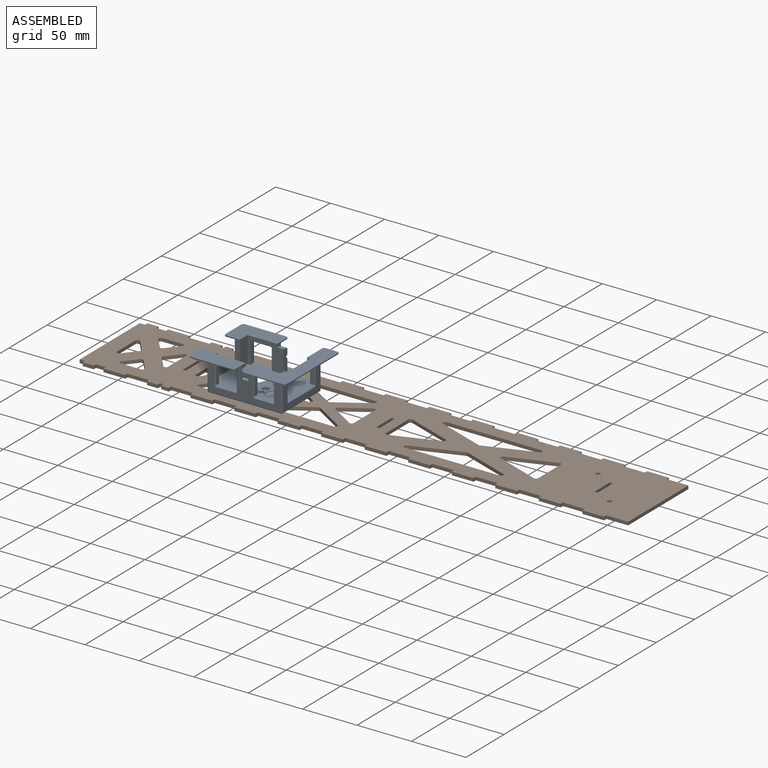
[diagram: assembled view]
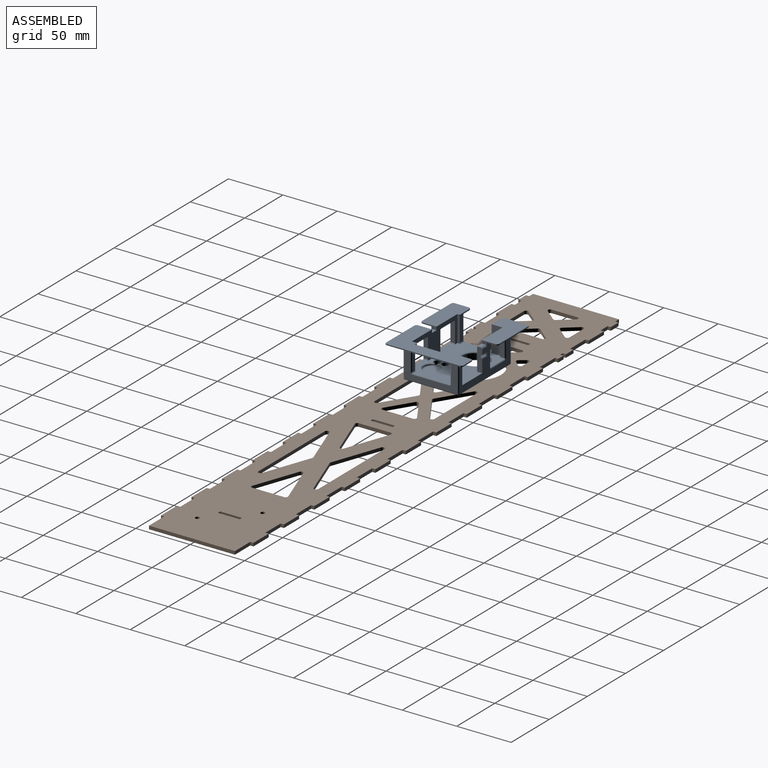
[diagram: assembled view, second angle]
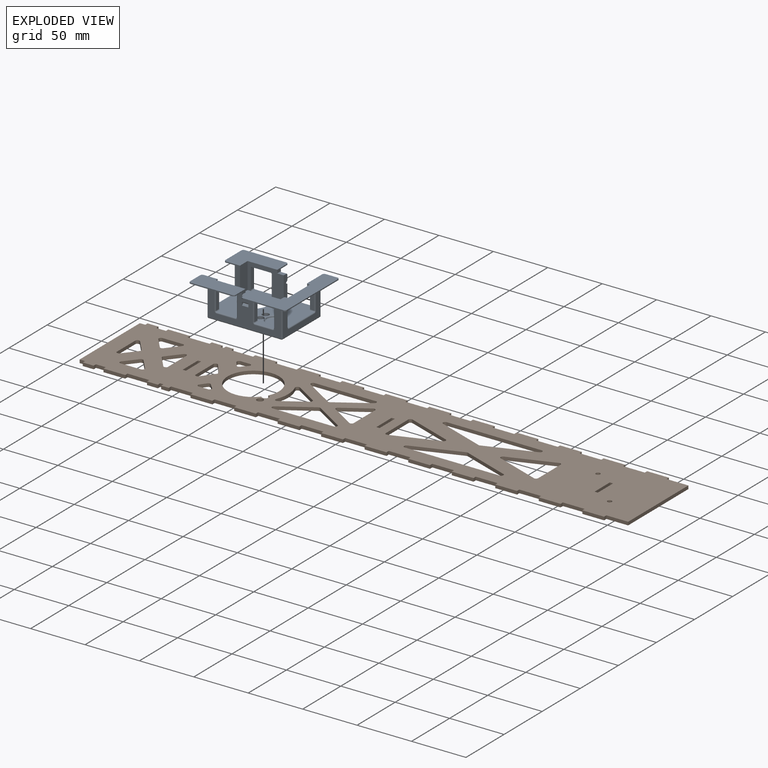
[diagram: exploded view]
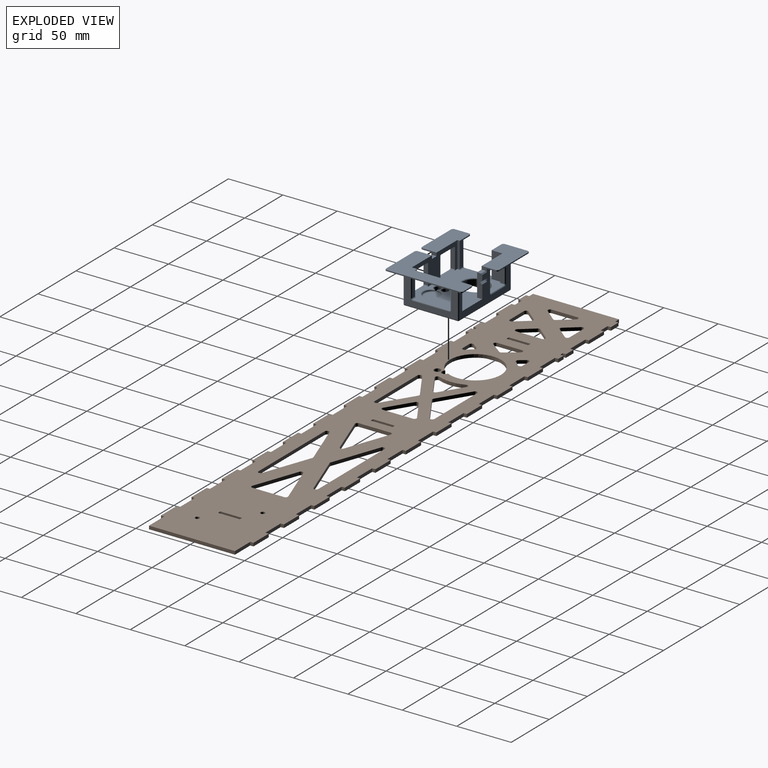
[diagram: exploded view, second angle]
ASSEMBLY  parts=2 mates=2
PART A: 170 faces, bbox 89x31x71 mm
  f0: plane 24x19.25mm, normal (1,0,0), area 208.4mm2, adj f1,f2,f8,f13,f18,f47,f103,f106
  f1: plane 33.5x3.75mm, normal (0,-1,0), area 67.2mm2, adj f0,f11,f12,f109,f112,f115,f166,f168
  f2: plane 68x50mm, normal (0,1,0), area 2178.2mm2, adj f0,f3,f6,f8,f10,f19,f29,f30
  f3: plane 21x4.75mm, normal (-1,0,0), area 96.2mm2, adj f2,f8,f30,f87,f88,f155,f157
  f4: plane 42x17mm, normal (0,1,0), area 650.1mm2, adj f6,f32,f33,f38,f41,f45,f46,f81
  f5: plane 67x29mm, normal (0,0,-1), area 1000.9mm2, adj f18,f42,f66,f71,f72,f80,f81,f83
  f6: plane 59.5x24mm, normal (0,0,1), area 661.7mm2, adj f2,f4,f10,f13,f32,f80,f81,f93
  f7: plane 2.88x2.56mm, normal (0,1,0), area 1.9mm2, adj f36,f163,f164
  f8: plane 67x29mm, normal (0,0,1), area 839.2mm2, adj f0,f2,f3,f16,f18,f68,f73,f74
  f9: plane 49x29mm, normal (-1,0,0), area 599.4mm2, adj f18,f66,f67,f68,f105,f107,f108,f110
  f10: plane 24x4mm, normal (1,0,0), area 76.4mm2, adj f2,f6,f13,f102,f104,f109,f169
  f11: plane 4x2mm, normal (0,0,1), area 4.5mm2, adj f1,f12,f13,f167,f169
  f12: plane 29x3mm, normal (1,0,0), area 87mm2, adj f1,f11,f166,f167
  f13: plane 71x41mm, normal (0,1,0), area 1343.6mm2, adj f0,f6,f10,f11,f17,f39,f40,f47
  f14: plane 42x24.75mm, normal (0,1,0), area 764.4mm2, adj f15,f29,f30,f31,f37,f43,f44,f82
  f15: plane 38x1mm, normal (0,0,1), area 38mm2, adj f14,f16,f44,f90
  f16: plane 42x24.75mm, normal (0,-1,0), area 565.1mm2, adj f8,f15,f19,f31,f37,f43,f44,f74
  f17: plane 37x1mm, normal (0,0,-1), area 37mm2, adj f13,f18,f48,f91
  f18: plane 71x41mm, normal (0,-1,0), area 1064.5mm2, adj f0,f5,f8,f9,f17,f39,f40,f47
  f19: plane 49x29mm, normal (1,0,0), area 748.7mm2, adj f2,f16,f31,f33,f42,f71,f74,f77
  f20: plane 67x49mm, normal (0,-1,0), area 2648.9mm2, adj f58,f59,f60,f61,f62,f63,f64,f65
  f21: plane 5x0.5mm, normal (-1,0,0), area 2.5mm2, adj f25,f27,f56,f64
  f22: plane 5x0.5mm, normal (0,0,1), area 2.5mm2, adj f25,f26,f55,f60
  f23: plane 5x0.5mm, normal (1,0,0), area 2.5mm2, adj f26,f28,f51,f59
  f24: plane 5x0.5mm, normal (0,0,-1), area 2.5mm2, adj f27,f28,f52,f63
  f25: cylinder r=12mm len=12mm, axis (0,1,0), area 94.2mm2, adj f21,f22,f57,f62
  f26: cylinder r=12mm len=12mm, axis (0,-1,0), area 94.2mm2, adj f22,f23,f53,f58
  f27: cylinder r=12mm len=12mm, axis (0,-1,0), area 94.2mm2, adj f21,f24,f54,f65
  f28: cylinder r=12mm len=12mm, axis (0,1,0), area 94.2mm2, adj f23,f24,f50,f61
  f29: plane 24x11mm, normal (-1,0,0), area 240.2mm2, adj f2,f14,f30,f31,f79
  f30: plane 33.25x24mm, normal (0,0,-1), area 395.9mm2, adj f2,f3,f14,f29,f82,f99,f100,f101
  f31: plane 23x12.75mm, normal (0,0,-1), area 117.3mm2, adj f14,f16,f19,f29,f43,f79
  f32: plane 24x3.25mm, normal (-1,0,0), area 54.2mm2, adj f2,f4,f6,f33,f78
  f33: plane 23x12.75mm, normal (0,0,1), area 117.3mm2, adj f4,f19,f32,f42,f45,f78
  f34: plane 13x13mm, normal (0,1,0), area 132.7mm2, adj f35
  f35: torus R=6.5mm, axis (0,1,0), area 69.6mm2, adj f34,f36,f160
  f36: torus R=8.5mm, axis (0,-1,0), area 73.1mm2, adj f2,f7,f35,f161,f162,f165
  f37: plane 20.75x1mm, normal (1,0,0), area 20.8mm2, adj f14,f16,f43,f44
  f38: plane 38x1mm, normal (0,0,-1), area 38mm2, adj f4,f42,f46,f92
  f39: plane 67x1mm, normal (-1,0,0), area 67mm2, adj f13,f18,f48,f49
  f40: plane 10.75x1mm, normal (0,0,1), area 10.8mm2, adj f13,f18,f47,f49
  f41: plane 13x1mm, normal (1,0,0), area 13mm2, adj f4,f42,f45,f46
  f42: plane 42x17mm, normal (0,-1,0), area 487.6mm2, adj f5,f19,f33,f38,f41,f45,f46,f71
  f43: cylinder r=2mm len=2mm, axis (0,1,0), area 3.1mm2, adj f14,f16,f31,f37
  f44: cylinder r=2mm len=2mm, axis (0,1,0), area 3.1mm2, adj f14,f15,f16,f37
  f45: cylinder r=2mm len=2mm, axis (0,1,0), area 3.1mm2, adj f4,f33,f41,f42
  f46: cylinder r=2mm len=2mm, axis (0,-1,0), area 3.1mm2, adj f4,f38,f41,f42
  f47: cylinder r=2mm len=2mm, axis (0,1,0), area 3.1mm2, adj f0,f13,f18,f40
  f48: cylinder r=2mm len=2mm, axis (0,-1,0), area 3.1mm2, adj f13,f17,f18,f39
  f49: cylinder r=2mm len=2mm, axis (0,1,0), area 3.1mm2, adj f13,f18,f39,f40
  f50: torus R=13mm, axis (0,-1,0), area 30.5mm2, adj f2,f28,f51,f52
  f51: cylinder r=1mm len=1mm, axis (0,0,1), area 0.8mm2, adj f2,f23,f50,f53
  f52: cylinder r=1mm len=1mm, axis (1,0,0), area 0.8mm2, adj f2,f24,f50,f54
  f53: torus R=13mm, axis (0,-1,0), area 30.5mm2, adj f2,f26,f51,f55
  f54: torus R=13mm, axis (0,-1,0), area 30.5mm2, adj f2,f27,f52,f56
  f55: cylinder r=1mm len=1mm, axis (-1,0,0), area 0.8mm2, adj f2,f22,f53,f57
  f56: cylinder r=1mm len=1mm, axis (0,0,-1), area 0.8mm2, adj f2,f21,f54,f57
  f57: torus R=13mm, axis (0,-1,0), area 30.5mm2, adj f2,f25,f55,f56
  f58: torus R=13mm, axis (0,-1,0), area 30.5mm2, adj f20,f26,f59,f60
  f59: cylinder r=1mm len=1mm, axis (0,0,1), area 0.8mm2, adj f20,f23,f58,f61
  f60: cylinder r=1mm len=1mm, axis (-1,0,0), area 0.8mm2, adj f20,f22,f58,f62
  f61: torus R=13mm, axis (0,-1,0), area 30.5mm2, adj f20,f28,f59,f63
  f62: torus R=13mm, axis (0,-1,0), area 30.5mm2, adj f20,f25,f60,f64
  f63: cylinder r=1mm len=1mm, axis (1,0,0), area 0.8mm2, adj f20,f24,f61,f65
  f64: cylinder r=1mm len=1mm, axis (0,0,-1), area 0.8mm2, adj f20,f21,f62,f65
  f65: torus R=13mm, axis (0,-1,0), area 30.5mm2, adj f20,f27,f63,f64
  f66: cylinder r=1mm len=29mm, axis (0,-1,0), area 45.6mm2, adj f5,f9,f18,f69
  f67: cylinder r=1mm len=49mm, axis (0,0,1), area 77mm2, adj f9,f20,f69,f70
  f68: cylinder r=1mm len=29mm, axis (0,1,0), area 45.6mm2, adj f8,f9,f18,f70
  f69: sphere r=1mm, area 1.6mm2, adj f66,f67,f72
  f70: sphere r=1mm, area 1.6mm2, adj f67,f68,f73
  f71: cylinder r=1mm len=29mm, axis (0,1,0), area 45.6mm2, adj f5,f19,f42,f75
  f72: cylinder r=1mm len=67mm, axis (-1,0,0), area 105.2mm2, adj f5,f20,f69,f75
  f73: cylinder r=1mm len=67mm, axis (1,0,0), area 105.2mm2, adj f8,f20,f70,f76
  f74: cylinder r=1mm len=29mm, axis (0,-1,0), area 45.6mm2, adj f8,f16,f19,f76
  f75: sphere r=1mm, area 1.6mm2, adj f71,f72,f77
  f76: sphere r=1mm, area 1.6mm2, adj f73,f74,f77
  f77: cylinder r=1mm len=49mm, axis (0,0,-1), area 77mm2, adj f19,f20,f75,f76
  f78: cylinder r=1mm len=4.75mm, axis (-1,0,0), area 7.5mm2, adj f2,f19,f32,f33
  f79: cylinder r=1mm len=4.75mm, axis (1,0,0), area 7.5mm2, adj f2,f19,f29,f31
  f80: plane 12.75x4mm, normal (1,0,0), area 22.8mm2, adj f5,f6,f13,f18,f91,f154,f156
  f81: plane 12.75x4mm, normal (-1,0,0), area 22.8mm2, adj f4,f5,f6,f42,f92,f154,f156
  f82: plane 12.75x4mm, normal (-1,0,0), area 22.8mm2, adj f8,f14,f16,f30,f90,f155,f157
  f83: plane 3x2mm, normal (1,0,0), area 3mm2, adj f5,f84,f85
  f84: plane 6x2mm, normal (0,-0.8,-0.6), area 15mm2, adj f5,f83,f85,f86
  f85: plane 6x2mm, normal (0,0.8,-0.6), area 15mm2, adj f5,f83,f84,f86
  f86: plane 3x2mm, normal (-1,0,0), area 3mm2, adj f5,f84,f85
  f87: plane 6x2mm, normal (0,-0.8,0.6), area 15mm2, adj f3,f8,f88,f89
  f88: plane 6x2mm, normal (0,0.8,0.6), area 15mm2, adj f3,f8,f87,f89
  f89: plane 3x2mm, normal (-1,0,0), area 3mm2, adj f8,f87,f88
  f90: cylinder r=2mm len=2mm, axis (0,-1,0), area 3.1mm2, adj f14,f15,f16,f82
  f91: cylinder r=2mm len=2mm, axis (0,-1,0), area 3.1mm2, adj f13,f17,f18,f80
  f92: cylinder r=2mm len=2mm, axis (0,1,0), area 3.1mm2, adj f4,f38,f42,f81
  f93: plane 16.25x3.75mm, normal (0,-1,0), area 60.9mm2, adj f6,f145,f148,f151
  f94: plane 18x3.75mm, normal (-1,0,0), area 67.5mm2, adj f6,f140,f145,f146
  f95: plane 18x3.75mm, normal (1,0,0), area 67.5mm2, adj f6,f142,f147,f148
  f96: plane 18x3.75mm, normal (-1,0,0), area 67.5mm2, adj f6,f128,f133,f134
  f97: plane 18x3.75mm, normal (1,0,0), area 67.5mm2, adj f6,f130,f135,f136
  f98: plane 17.25x3.75mm, normal (0,-1,0), area 64.7mm2, adj f6,f133,f136,f139
  f99: plane 17.25x3.75mm, normal (0,-1,0), area 64.7mm2, adj f30,f122,f123,f127
  f100: plane 18x3.75mm, normal (1,0,0), area 67.5mm2, adj f30,f117,f123,f124
  f101: plane 18x3.75mm, normal (-1,0,0), area 67.5mm2, adj f30,f116,f121,f122
  f102: plane 18x3.75mm, normal (0,0,1), area 67.5mm2, adj f10,f104,f109,f110
  f103: plane 18x3.75mm, normal (0,0,-1), area 67.5mm2, adj f0,f106,f111,f112
  f104: cylinder r=1mm len=3.75mm, axis (1,0,0), area 5.9mm2, adj f2,f10,f102,f107
  f105: cylinder r=1mm len=33.5mm, axis (0,0,-1), area 52.6mm2, adj f2,f9,f107,f108
  f106: cylinder r=1mm len=3.75mm, axis (-1,0,0), area 5.9mm2, adj f0,f2,f103,f108
  f107: torus R=2mm, axis (-1,0,0), area 3.4mm2, adj f9,f104,f105,f110
  f108: torus R=2mm, axis (-1,0,0), area 3.4mm2, adj f9,f105,f106,f111
  f109: cylinder r=1mm len=3.75mm, axis (-1,0,0), area 5.9mm2, adj f1,f10,f102,f113
  f110: cylinder r=1mm len=18mm, axis (0,1,0), area 28.3mm2, adj f9,f102,f107,f113
  f111: cylinder r=1mm len=18mm, axis (0,-1,0), area 28.3mm2, adj f9,f103,f108,f114
  f112: cylinder r=1mm len=3.75mm, axis (1,0,0), area 5.9mm2, adj f0,f1,f103,f114
  f113: torus R=2mm, axis (-1,0,0), area 3.4mm2, adj f9,f109,f110,f115
  f114: torus R=2mm, axis (-1,0,0), area 3.4mm2, adj f9,f111,f112,f115
  f115: cylinder r=1mm len=33.5mm, axis (0,0,1), area 52.6mm2, adj f1,f9,f113,f114
  f116: cylinder r=1mm len=3.75mm, axis (0,0,1), area 5.9mm2, adj f2,f30,f101,f119
  f117: cylinder r=1mm len=3.75mm, axis (0,0,-1), area 5.9mm2, adj f2,f30,f100,f120
  f118: cylinder r=1mm len=17.25mm, axis (-1,0,0), area 27.1mm2, adj f2,f8,f119,f120
  f119: torus R=2mm, axis (0,0,-1), area 3.4mm2, adj f8,f116,f118,f121
  f120: torus R=2mm, axis (0,0,-1), area 3.4mm2, adj f8,f117,f118,f124
  f121: cylinder r=1mm len=18mm, axis (0,-1,0), area 28.3mm2, adj f8,f101,f119,f125
  f122: cylinder r=1mm len=3.75mm, axis (0,0,-1), area 5.9mm2, adj f30,f99,f101,f125
  f123: cylinder r=1mm len=3.75mm, axis (0,0,1), area 5.9mm2, adj f30,f99,f100,f126
  f124: cylinder r=1mm len=18mm, axis (0,1,0), area 28.3mm2, adj f8,f100,f120,f126
  f125: torus R=2mm, axis (0,0,-1), area 3.4mm2, adj f8,f121,f122,f127
  f126: torus R=2mm, axis (0,0,-1), area 3.4mm2, adj f8,f123,f124,f127
  f127: cylinder r=1mm len=17.25mm, axis (1,0,0), area 27.1mm2, adj f8,f99,f125,f126
  f128: cylinder r=1mm len=3.75mm, axis (0,0,1), area 5.9mm2, adj f2,f6,f96,f131
  f129: cylinder r=1mm len=17.25mm, axis (1,0,0), area 27.1mm2, adj f2,f5,f131,f132
  f130: cylinder r=1mm len=3.75mm, axis (0,0,-1), area 5.9mm2, adj f2,f6,f97,f132
  f131: torus R=2mm, axis (0,0,-1), area 3.4mm2, adj f5,f128,f129,f134
  f132: torus R=2mm, axis (0,0,-1), area 3.4mm2, adj f5,f129,f130,f135
  f133: cylinder r=1mm len=3.75mm, axis (0,0,-1), area 5.9mm2, adj f6,f96,f98,f137
  f134: cylinder r=1mm len=18mm, axis (0,1,0), area 28.3mm2, adj f5,f96,f131,f137
  f135: cylinder r=1mm len=18mm, axis (0,-1,0), area 28.3mm2, adj f5,f97,f132,f138
  f136: cylinder r=1mm len=3.75mm, axis (0,0,1), area 5.9mm2, adj f6,f97,f98,f138
  f137: torus R=2mm, axis (0,0,-1), area 3.4mm2, adj f5,f133,f134,f139
  f138: torus R=2mm, axis (0,0,-1), area 3.4mm2, adj f5,f135,f136,f139
  f139: cylinder r=1mm len=17.25mm, axis (-1,0,0), area 27.1mm2, adj f5,f98,f137,f138
  f140: cylinder r=1mm len=3.75mm, axis (0,0,1), area 5.9mm2, adj f2,f6,f94,f143
  f141: cylinder r=1mm len=16.25mm, axis (1,0,0), area 25.5mm2, adj f2,f5,f143,f144
  f142: cylinder r=1mm len=3.75mm, axis (0,0,-1), area 5.9mm2, adj f2,f6,f95,f144
  f143: torus R=2mm, axis (0,0,-1), area 3.4mm2, adj f5,f140,f141,f146
  f144: torus R=2mm, axis (0,0,-1), area 3.4mm2, adj f5,f141,f142,f147
  f145: cylinder r=1mm len=3.75mm, axis (0,0,-1), area 5.9mm2, adj f6,f93,f94,f149
  f146: cylinder r=1mm len=18mm, axis (0,1,0), area 28.3mm2, adj f5,f94,f143,f149
  f147: cylinder r=1mm len=18mm, axis (0,-1,0), area 28.3mm2, adj f5,f95,f144,f150
  f148: cylinder r=1mm len=3.75mm, axis (0,0,1), area 5.9mm2, adj f6,f93,f95,f150
  f149: torus R=2mm, axis (0,0,-1), area 3.4mm2, adj f5,f145,f146,f151
  f150: torus R=2mm, axis (0,0,-1), area 3.4mm2, adj f5,f147,f148,f151
  f151: cylinder r=1mm len=16.25mm, axis (-1,0,0), area 25.5mm2, adj f5,f93,f149,f150
  f152: cylinder r=3mm len=6mm, axis (0,1,0), area 110.9mm2, adj f159,f160,f161,f162,f163
  f153: cylinder r=3mm len=6mm, axis (0,1,0), area 113.1mm2, adj f158,f164,f165
  f154: plane 6x3.75mm, normal (0,1,0), area 22.5mm2, adj f6,f80,f81,f156
  f155: plane 6x3.75mm, normal (0,1,0), area 22.5mm2, adj f3,f30,f82,f157
  f156: plane 6x1mm, normal (0,0.71,-0.71), area 8.5mm2, adj f5,f80,f81,f154
  f157: plane 6x1mm, normal (0,0.71,0.71), area 8.5mm2, adj f3,f8,f82,f155
  f158: torus R=3.5mm, axis (0,-1,0), area 15.7mm2, adj f20,f153
  f159: torus R=3.5mm, axis (0,-1,0), area 15.7mm2, adj f20,f152
  f160: bspline ~2.01x1.36mm, area 2.2mm2, adj f35,f152,f161,f162
  f161: bspline ~3.01x1.96mm, area 1.8mm2, adj f36,f152,f160,f163
  f162: bspline ~3.31x1.74mm, area 1.8mm2, adj f36,f152,f160,f163
  f163: torus R=3.5mm, axis (0,-1,0), area 12.9mm2, adj f2,f7,f152,f161,f162
  f164: torus R=3.5mm, axis (0,-1,0), area 14.6mm2, adj f2,f7,f153,f165
  f165: bspline ~1.78x1.22mm, area 1.2mm2, adj f36,f153,f164
  f166: plane 4x2mm, normal (0,0,-1), area 4.5mm2, adj f1,f12,f13,f167,f168
  f167: plane 29x1mm, normal (0.71,0.71,0), area 41mm2, adj f11,f12,f13,f166
  f168: cylinder r=1mm len=4mm, axis (0,-1,0), area 6.3mm2, adj f0,f1,f13,f166
  f169: cylinder r=1mm len=4mm, axis (0,-1,0), area 6.3mm2, adj f1,f10,f11,f13
PART B: 225 faces, bbox 504x85x3 mm
  f0: plane 10x3mm, normal (0,1,0), area 30mm2, adj f2,f31,f124,f202
  f1: plane 10x3mm, normal (0,-1,0), area 30mm2, adj f2,f31,f192,f210
  f2: plane 504x85mm, normal (0,0,1), area 31881.9mm2, adj f0,f1,f3,f4,f5,f6,f7,f8
  f3: plane 79x3mm, normal (-1,0,0), area 237mm2, adj f2,f31,f118,f196
  f4: plane 79x3mm, normal (1,0,0), area 237mm2, adj f2,f31,f156,f158
  f5: plane 10x3mm, normal (0,1,0), area 30mm2, adj f2,f31,f119,f121
  f6: plane 20x3mm, normal (0,1,0), area 60mm2, adj f2,f31,f122,f125
  f7: plane 7x3mm, normal (0,1,0), area 21mm2, adj f2,f31,f128,f203
  f8: plane 20x3mm, normal (0,1,0), area 60mm2, adj f2,f31,f127,f131
  f9: plane 20x3mm, normal (0,1,0), area 60mm2, adj f2,f31,f130,f134
  f10: plane 20x3mm, normal (0,1,0), area 60mm2, adj f2,f31,f133,f137
  f11: plane 20x3mm, normal (0,1,0), area 60mm2, adj f2,f31,f136,f139
  f12: plane 20x3mm, normal (0,1,0), area 60mm2, adj f2,f31,f154,f157
  f13: plane 20x3mm, normal (0,1,0), area 60mm2, adj f2,f31,f151,f155
  f14: plane 20x3mm, normal (0,1,0), area 60mm2, adj f2,f31,f148,f152
  f15: plane 20x3mm, normal (0,1,0), area 60mm2, adj f2,f31,f145,f149
  f16: plane 20x3mm, normal (0,1,0), area 60mm2, adj f2,f31,f143,f146
  f17: plane 20x3mm, normal (0,1,0), area 60mm2, adj f2,f31,f140,f142
  f18: plane 10x3mm, normal (0,-1,0), area 30mm2, adj f2,f31,f194,f197
  f19: plane 20x3mm, normal (0,-1,0), area 60mm2, adj f2,f31,f176,f180
  f20: plane 20x3mm, normal (0,-1,0), area 60mm2, adj f2,f31,f179,f183
  f21: plane 20x3mm, normal (0,-1,0), area 60mm2, adj f2,f31,f182,f186
  f22: plane 20x3mm, normal (0,-1,0), area 60mm2, adj f2,f31,f185,f189
  f23: plane 7x3mm, normal (0,-1,0), area 21mm2, adj f2,f31,f188,f211
  f24: plane 20x3mm, normal (0,-1,0), area 60mm2, adj f2,f31,f191,f195
  f25: plane 20x3mm, normal (0,-1,0), area 60mm2, adj f2,f31,f159,f161
  f26: plane 20x3mm, normal (0,-1,0), area 60mm2, adj f2,f31,f162,f164
  f27: plane 20x3mm, normal (0,-1,0), area 60mm2, adj f2,f31,f165,f167
  f28: plane 20x3mm, normal (0,-1,0), area 60mm2, adj f2,f31,f168,f170
  f29: plane 20x3mm, normal (0,-1,0), area 60mm2, adj f2,f31,f171,f174
  f30: plane 20x3mm, normal (0,-1,0), area 60mm2, adj f2,f31,f173,f177
  f31: plane 504x85mm, normal (0,0,-1), area 31881.9mm2, adj f0,f1,f3,f4,f5,f6,f7,f8
  f32: cylinder r=32mm len=24.49mm, axis (0,0,1), area 75.4mm2, adj f2,f31,f112,f116
  f33: plane 20.81x13.01mm, normal (-0.53,-0.85,0), area 73.6mm2, adj f2,f31,f112,f113
  f34: plane 40.71x14.65mm, normal (0.34,-0.94,0), area 129.8mm2, adj f2,f31,f94,f101
  f35: plane 29.31x3mm, normal (-1,0,0), area 87.9mm2, adj f2,f31,f94,f95
  f36: plane 43.54x15.67mm, normal (0.34,0.94,0), area 138.8mm2, adj f2,f31,f92,f100
  f37: plane 87.08x3mm, normal (0,-1,0), area 261.2mm2, adj f2,f31,f92,f93
  f38: plane 29.31x3mm, normal (1,0,0), area 87.9mm2, adj f2,f31,f90,f91
  f39: plane 40.71x14.65mm, normal (-0.34,-0.94,0), area 129.8mm2, adj f2,f31,f91,f99
  f40: plane 87.08x3mm, normal (0,1,0), area 261.2mm2, adj f2,f31,f96,f97
  f41: plane 43.54x15.67mm, normal (0.34,-0.94,0), area 138.8mm2, adj f2,f31,f97,f98
  f42: plane 11.92x9.8mm, normal (0.77,-0.64,0), area 46.3mm2, adj f2,f31,f86,f105
  f43: plane 23.84x3mm, normal (-1,0,0), area 71.5mm2, adj f2,f31,f86,f87
  f44: plane 11.27x9.27mm, normal (0.77,0.64,0), area 43.8mm2, adj f2,f31,f84,f103
  f45: plane 18.53x3mm, normal (0,-1,0), area 55.6mm2, adj f2,f31,f84,f85
  f46: plane 23.84x3mm, normal (1,0,0), area 71.5mm2, adj f2,f31,f82,f83
  f47: plane 11.92x9.8mm, normal (-0.77,-0.64,0), area 46.3mm2, adj f2,f31,f83,f102
  f48: plane 18.53x3mm, normal (0,1,0), area 55.6mm2, adj f2,f31,f88,f89
  f49: plane 11.27x9.27mm, normal (0.77,-0.64,0), area 43.8mm2, adj f2,f31,f89,f104
  f50: cylinder r=23.5mm len=47mm, axis (0,0,1), area 426.4mm2, adj f2,f31,f73
  f51: plane 28.03x17.52mm, normal (-0.53,-0.85,0), area 99.2mm2, adj f2,f31,f110,f115
  f52: plane 56.05x3mm, normal (0,1,0), area 168.2mm2, adj f2,f31,f110,f111
  f53: plane 22.23x13.89mm, normal (0.53,-0.85,0), area 78.6mm2, adj f2,f31,f108,f117
  f54: plane 27.78x3mm, normal (-1,0,0), area 83.3mm2, adj f2,f31,f108,f109
  f55: plane 56.05x3mm, normal (0,-1,0), area 168.2mm2, adj f2,f31,f106,f107
  f56: plane 28.03x17.52mm, normal (-0.53,0.85,0), area 99.2mm2, adj f2,f31,f107,f114
  f57: plane 5.12x3.81mm, normal (0.8,-0.6,0), area 19.1mm2, adj f2,f31,f221,f223
  f58: cylinder r=32mm len=4.82mm, axis (0,0,1), area 19.7mm2, adj f2,f31,f221,f222
  f59: plane 5.12x3.81mm, normal (0.8,0.6,0), area 19.1mm2, adj f2,f31,f217,f219
  f60: plane 8.53x3mm, normal (0,-1,0), area 25.6mm2, adj f2,f31,f217,f218
  f61: plane 22.91x3mm, normal (1,0,0), area 68.7mm2, adj f2,f31,f216,f224
  f62: plane 11.45x8.51mm, normal (-0.8,-0.6,0), area 42.8mm2, adj f2,f31,f216,f220
  f63: cylinder r=2mm len=4mm, axis (0,0,1), area 37.7mm2, adj f2,f31
  f64: cylinder r=2mm len=4mm, axis (0,0,1), area 37.7mm2, adj f2,f31
  f65: plane 40.71x14.65mm, normal (0.34,0.94,0), area 129.8mm2, adj f2,f31,f95,f101
  f66: plane 43.54x15.67mm, normal (-0.34,0.94,0), area 138.8mm2, adj f2,f31,f93,f100
  f67: plane 40.71x14.65mm, normal (-0.34,0.94,0), area 129.8mm2, adj f2,f31,f90,f99
  f68: plane 43.54x15.67mm, normal (-0.34,-0.94,0), area 138.8mm2, adj f2,f31,f96,f98
  f69: plane 11.92x9.8mm, normal (0.77,0.64,0), area 46.3mm2, adj f2,f31,f87,f105
  f70: plane 11.27x9.27mm, normal (-0.77,0.64,0), area 43.8mm2, adj f2,f31,f85,f103
  f71: plane 11.92x9.8mm, normal (-0.77,0.64,0), area 46.3mm2, adj f2,f31,f82,f102
  f72: plane 11.27x9.27mm, normal (-0.77,-0.64,0), area 43.8mm2, adj f2,f31,f88,f104
  f73: cylinder r=3mm len=5.96mm, axis (0,0,1), area 35.7mm2, adj f2,f31,f50
  f74: cylinder r=3mm len=6mm, axis (0,0,1), area 56.5mm2, adj f2,f31
  f75: plane 28.03x17.52mm, normal (0.53,-0.85,0), area 99.2mm2, adj f2,f31,f111,f115
  f76: plane 22.23x13.89mm, normal (0.53,0.85,0), area 78.6mm2, adj f2,f31,f109,f117
  f77: plane 28.03x17.52mm, normal (0.53,0.85,0), area 99.2mm2, adj f2,f31,f106,f114
  f78: plane 8.53x3mm, normal (0,1,0), area 25.6mm2, adj f2,f31,f222,f223
  f79: cylinder r=32mm len=4.82mm, axis (0,0,1), area 19.7mm2, adj f2,f31,f218,f219
  f80: plane 11.45x8.51mm, normal (-0.8,0.6,0), area 42.8mm2, adj f2,f31,f220,f224
  f81: plane 20.81x13.01mm, normal (-0.53,0.85,0), area 73.6mm2, adj f2,f31,f113,f116
  f82: cylinder r=2mm len=3.55mm, axis (0,0,-1), area 14.7mm2, adj f2,f31,f46,f71
  f83: cylinder r=2mm len=3.55mm, axis (0,0,1), area 14.7mm2, adj f2,f31,f46,f47
  f84: cylinder r=2mm len=3.27mm, axis (0,0,1), area 13.6mm2, adj f2,f31,f44,f45
  f85: cylinder r=2mm len=3.27mm, axis (0,0,1), area 13.6mm2, adj f2,f31,f45,f70
  f86: cylinder r=2mm len=3.55mm, axis (0,0,-1), area 14.7mm2, adj f2,f31,f42,f43
  f87: cylinder r=2mm len=3.55mm, axis (0,0,1), area 14.7mm2, adj f2,f31,f43,f69
  f88: cylinder r=2mm len=3.27mm, axis (0,0,1), area 13.6mm2, adj f2,f31,f48,f72
  f89: cylinder r=2mm len=3.27mm, axis (0,0,1), area 13.6mm2, adj f2,f31,f48,f49
  f90: cylinder r=2mm len=3mm, axis (0,0,-1), area 11.5mm2, adj f2,f31,f38,f67
  f91: cylinder r=2mm len=3mm, axis (0,0,1), area 11.5mm2, adj f2,f31,f38,f39
  f92: cylinder r=2mm len=3.88mm, axis (0,0,1), area 16.8mm2, adj f2,f31,f36,f37
  f93: cylinder r=2mm len=3.88mm, axis (0,0,1), area 16.8mm2, adj f2,f31,f37,f66
  f94: cylinder r=2mm len=3mm, axis (0,0,-1), area 11.5mm2, adj f2,f31,f34,f35
  f95: cylinder r=2mm len=3mm, axis (0,0,1), area 11.5mm2, adj f2,f31,f35,f65
  f96: cylinder r=2mm len=3.88mm, axis (0,0,1), area 16.8mm2, adj f2,f31,f40,f68
  f97: cylinder r=2mm len=3.88mm, axis (0,0,1), area 16.8mm2, adj f2,f31,f40,f41
  f98: cylinder r=2mm len=3mm, axis (0,0,-1), area 4.1mm2, adj f2,f31,f41,f68
  f99: cylinder r=2mm len=3.76mm, axis (0,0,1), area 14.7mm2, adj f2,f31,f39,f67
  f100: cylinder r=2mm len=3mm, axis (0,0,-1), area 4.1mm2, adj f2,f31,f36,f66
  f101: cylinder r=2mm len=3.76mm, axis (0,0,1), area 14.7mm2, adj f2,f31,f34,f65
  f102: cylinder r=2mm len=3mm, axis (0,0,1), area 8.3mm2, adj f2,f31,f47,f71
  f103: cylinder r=2mm len=3.09mm, axis (0,0,-1), area 10.6mm2, adj f2,f31,f44,f70
  f104: cylinder r=2mm len=3.09mm, axis (0,0,-1), area 10.6mm2, adj f2,f31,f49,f72
  f105: cylinder r=2mm len=3mm, axis (0,0,1), area 8.3mm2, adj f2,f31,f42,f69
  f106: cylinder r=2mm len=3.7mm, axis (0,0,-1), area 15.5mm2, adj f2,f31,f55,f77
  f107: cylinder r=2mm len=3.7mm, axis (0,0,-1), area 15.5mm2, adj f2,f31,f55,f56
  f108: cylinder r=2mm len=3.06mm, axis (0,0,-1), area 12.8mm2, adj f2,f31,f53,f54
  f109: cylinder r=2mm len=3.06mm, axis (0,0,1), area 12.8mm2, adj f2,f31,f54,f76
  f110: cylinder r=2mm len=3.7mm, axis (0,0,-1), area 15.5mm2, adj f2,f31,f51,f52
  f111: cylinder r=2mm len=3.7mm, axis (0,0,-1), area 15.5mm2, adj f2,f31,f52,f75
  f112: cylinder r=2mm len=3.06mm, axis (0,0,1), area 15.1mm2, adj f2,f31,f32,f33
  f113: cylinder r=2mm len=3.39mm, axis (0,0,1), area 12.1mm2, adj f2,f31,f33,f81
  f114: cylinder r=2mm len=3mm, axis (0,0,-1), area 6.7mm2, adj f2,f31,f56,f77
  f115: cylinder r=2mm len=3mm, axis (0,0,-1), area 6.7mm2, adj f2,f31,f51,f75
  f116: cylinder r=2mm len=3.06mm, axis (0,0,1), area 15.1mm2, adj f2,f31,f32,f81
  f117: cylinder r=2mm len=3.39mm, axis (0,0,1), area 12.1mm2, adj f2,f31,f53,f76
  f118: plane 5x3mm, normal (0,1,0), area 15mm2, adj f2,f3,f31,f119
  f119: plane 3x3mm, normal (-1,0,0), area 9mm2, adj f2,f5,f31,f118
  f120: plane 9x3mm, normal (0,1,0), area 27mm2, adj f2,f31,f121,f122
  f121: plane 3x3mm, normal (1,0,0), area 9mm2, adj f2,f5,f31,f120
  f122: plane 3x3mm, normal (-1,0,0), area 9mm2, adj f2,f6,f31,f120
  f123: plane 20x3mm, normal (0,1,0), area 60mm2, adj f2,f31,f124,f125
  f124: plane 3x3mm, normal (-1,0,0), area 9mm2, adj f0,f2,f31,f123
  f125: plane 3x3mm, normal (1,0,0), area 9mm2, adj f2,f6,f31,f123
  f126: plane 20x3mm, normal (0,1,0), area 60mm2, adj f2,f31,f127,f128
  f127: plane 3x3mm, normal (-1,0,0), area 9mm2, adj f2,f8,f31,f126
  f128: plane 3x3mm, normal (1,0,0), area 9mm2, adj f2,f7,f31,f126
  f129: plane 20x3mm, normal (0,1,0), area 60mm2, adj f2,f31,f130,f131
  f130: plane 3x3mm, normal (-1,0,0), area 9mm2, adj f2,f9,f31,f129
  f131: plane 3x3mm, normal (1,0,0), area 9mm2, adj f2,f8,f31,f129
  f132: plane 20x3mm, normal (0,1,0), area 60mm2, adj f2,f31,f133,f134
  f133: plane 3x3mm, normal (-1,0,0), area 9mm2, adj f2,f10,f31,f132
  f134: plane 3x3mm, normal (1,0,0), area 9mm2, adj f2,f9,f31,f132
  f135: plane 20x3mm, normal (0,1,0), area 60mm2, adj f2,f31,f136,f137
  f136: plane 3x3mm, normal (-1,0,0), area 9mm2, adj f2,f11,f31,f135
  f137: plane 3x3mm, normal (1,0,0), area 9mm2, adj f2,f10,f31,f135
  f138: plane 20x3mm, normal (0,1,0), area 60mm2, adj f2,f31,f139,f140
  f139: plane 3x3mm, normal (1,0,0), area 9mm2, adj f2,f11,f31,f138
  f140: plane 3x3mm, normal (-1,0,0), area 9mm2, adj f2,f17,f31,f138
  f141: plane 20x3mm, normal (0,1,0), area 60mm2, adj f2,f31,f142,f143
  f142: plane 3x3mm, normal (1,0,0), area 9mm2, adj f2,f17,f31,f141
  f143: plane 3x3mm, normal (-1,0,0), area 9mm2, adj f2,f16,f31,f141
  f144: plane 20x3mm, normal (0,1,0), area 60mm2, adj f2,f31,f145,f146
  f145: plane 3x3mm, normal (-1,0,0), area 9mm2, adj f2,f15,f31,f144
  f146: plane 3x3mm, normal (1,0,0), area 9mm2, adj f2,f16,f31,f144
  f147: plane 20x3mm, normal (0,1,0), area 60mm2, adj f2,f31,f148,f149
  f148: plane 3x3mm, normal (-1,0,0), area 9mm2, adj f2,f14,f31,f147
  f149: plane 3x3mm, normal (1,0,0), area 9mm2, adj f2,f15,f31,f147
  f150: plane 20x3mm, normal (0,1,0), area 60mm2, adj f2,f31,f151,f152
  f151: plane 3x3mm, normal (-1,0,0), area 9mm2, adj f2,f13,f31,f150
  f152: plane 3x3mm, normal (1,0,0), area 9mm2, adj f2,f14,f31,f150
  f153: plane 20x3mm, normal (0,1,0), area 60mm2, adj f2,f31,f154,f155
  f154: plane 3x3mm, normal (-1,0,0), area 9mm2, adj f2,f12,f31,f153
  f155: plane 3x3mm, normal (1,0,0), area 9mm2, adj f2,f13,f31,f153
  f156: plane 20x3mm, normal (0,1,0), area 60mm2, adj f2,f4,f31,f157
  f157: plane 3x3mm, normal (1,0,0), area 9mm2, adj f2,f12,f31,f156
  f158: plane 20x3mm, normal (0,-1,0), area 60mm2, adj f2,f4,f31,f159
  f159: plane 3x3mm, normal (1,0,0), area 9mm2, adj f2,f25,f31,f158
  f160: plane 20x3mm, normal (0,-1,0), area 60mm2, adj f2,f31,f161,f162
  f161: plane 3x3mm, normal (-1,0,0), area 9mm2, adj f2,f25,f31,f160
  f162: plane 3x3mm, normal (1,0,0), area 9mm2, adj f2,f26,f31,f160
  f163: plane 20x3mm, normal (0,-1,0), area 60mm2, adj f2,f31,f164,f165
  f164: plane 3x3mm, normal (-1,0,0), area 9mm2, adj f2,f26,f31,f163
  f165: plane 3x3mm, normal (1,0,0), area 9mm2, adj f2,f27,f31,f163
  f166: plane 20x3mm, normal (0,-1,0), area 60mm2, adj f2,f31,f167,f168
  f167: plane 3x3mm, normal (-1,0,0), area 9mm2, adj f2,f27,f31,f166
  f168: plane 3x3mm, normal (1,0,0), area 9mm2, adj f2,f28,f31,f166
  f169: plane 20x3mm, normal (0,-1,0), area 60mm2, adj f2,f31,f170,f171
  f170: plane 3x3mm, normal (-1,0,0), area 9mm2, adj f2,f28,f31,f169
  f171: plane 3x3mm, normal (1,0,0), area 9mm2, adj f2,f29,f31,f169
  f172: plane 20x3mm, normal (0,-1,0), area 60mm2, adj f2,f31,f173,f174
  f173: plane 3x3mm, normal (1,0,0), area 9mm2, adj f2,f30,f31,f172
  f174: plane 3x3mm, normal (-1,0,0), area 9mm2, adj f2,f29,f31,f172
  f175: plane 20x3mm, normal (0,-1,0), area 60mm2, adj f2,f31,f176,f177
  f176: plane 3x3mm, normal (1,0,0), area 9mm2, adj f2,f19,f31,f175
  f177: plane 3x3mm, normal (-1,0,0), area 9mm2, adj f2,f30,f31,f175
  f178: plane 20x3mm, normal (0,-1,0), area 60mm2, adj f2,f31,f179,f180
  f179: plane 3x3mm, normal (1,0,0), area 9mm2, adj f2,f20,f31,f178
  f180: plane 3x3mm, normal (-1,0,0), area 9mm2, adj f2,f19,f31,f178
  f181: plane 20x3mm, normal (0,-1,0), area 60mm2, adj f2,f31,f182,f183
  f182: plane 3x3mm, normal (1,0,0), area 9mm2, adj f2,f21,f31,f181
  f183: plane 3x3mm, normal (-1,0,0), area 9mm2, adj f2,f20,f31,f181
  f184: plane 20x3mm, normal (0,-1,0), area 60mm2, adj f2,f31,f185,f186
  f185: plane 3x3mm, normal (1,0,0), area 9mm2, adj f2,f22,f31,f184
  f186: plane 3x3mm, normal (-1,0,0), area 9mm2, adj f2,f21,f31,f184
  f187: plane 20x3mm, normal (0,-1,0), area 60mm2, adj f2,f31,f188,f189
  f188: plane 3x3mm, normal (1,0,0), area 9mm2, adj f2,f23,f31,f187
  f189: plane 3x3mm, normal (-1,0,0), area 9mm2, adj f2,f22,f31,f187
  f190: plane 20x3mm, normal (0,-1,0), area 60mm2, adj f2,f31,f191,f192
  f191: plane 3x3mm, normal (1,0,0), area 9mm2, adj f2,f24,f31,f190
  f192: plane 3x3mm, normal (-1,0,0), area 9mm2, adj f1,f2,f31,f190
  f193: plane 9x3mm, normal (0,-1,0), area 27mm2, adj f2,f31,f194,f195
  f194: plane 3x3mm, normal (1,0,0), area 9mm2, adj f2,f18,f31,f193
  f195: plane 3x3mm, normal (-1,0,0), area 9mm2, adj f2,f24,f31,f193
  f196: plane 5x3mm, normal (0,-1,0), area 15mm2, adj f2,f3,f31,f197
  f197: plane 3x3mm, normal (-1,0,0), area 9mm2, adj f2,f18,f31,f196
  f198: plane 20x3mm, normal (-1,0,0), area 60mm2, adj f2,f31,f200,f201
  f199: plane 20x3mm, normal (1,0,0), area 60mm2, adj f2,f31,f200,f201
  f200: plane 3x3mm, normal (0,-1,0), area 9mm2, adj f2,f31,f198,f199
  f201: plane 3x3mm, normal (0,1,0), area 9mm2, adj f2,f31,f198,f199
  f202: plane 3x3mm, normal (1,0,0), area 9mm2, adj f0,f2,f31,f204
  f203: plane 3x3mm, normal (-1,0,0), area 9mm2, adj f2,f7,f31,f204
  f204: plane 3x3mm, normal (0,1,0), area 9mm2, adj f2,f31,f202,f203
  f205: plane 20x3mm, normal (1,0,0), area 60mm2, adj f2,f31,f207,f208
  f206: plane 20x3mm, normal (-1,0,0), area 60mm2, adj f2,f31,f207,f208
  f207: plane 3x3mm, normal (0,1,0), area 9mm2, adj f2,f31,f205,f206
  f208: plane 3x3mm, normal (0,-1,0), area 9mm2, adj f2,f31,f205,f206
  f209: plane 3x3mm, normal (0,-1,0), area 9mm2, adj f2,f31,f210,f211
  f210: plane 3x3mm, normal (1,0,0), area 9mm2, adj f1,f2,f31,f209
  f211: plane 3x3mm, normal (-1,0,0), area 9mm2, adj f2,f23,f31,f209
  f212: plane 20x3mm, normal (-1,0,0), area 60mm2, adj f2,f31,f214,f215
  f213: plane 20x3mm, normal (1,0,0), area 60mm2, adj f2,f31,f214,f215
  f214: plane 3x3mm, normal (0,-1,0), area 9mm2, adj f2,f31,f212,f213
  f215: plane 3x3mm, normal (0,1,0), area 9mm2, adj f2,f31,f212,f213
  f216: cylinder r=2mm len=3.61mm, axis (0,0,-1), area 15mm2, adj f2,f31,f61,f62
  f217: cylinder r=2mm len=3.19mm, axis (0,0,1), area 13.3mm2, adj f2,f31,f59,f60
  f218: cylinder r=2mm len=3.5mm, axis (0,0,1), area 14.5mm2, adj f2,f31,f60,f79
  f219: cylinder r=2mm len=3.21mm, axis (0,0,1), area 11.2mm2, adj f2,f31,f59,f79
  f220: cylinder r=2mm len=3mm, axis (0,0,1), area 7.7mm2, adj f2,f31,f62,f80
  f221: cylinder r=2mm len=3.21mm, axis (0,0,1), area 11.2mm2, adj f2,f31,f57,f58
  f222: cylinder r=2mm len=3.5mm, axis (0,0,1), area 14.5mm2, adj f2,f31,f58,f78
  f223: cylinder r=2mm len=3.19mm, axis (0,0,1), area 13.3mm2, adj f2,f31,f57,f78
  f224: cylinder r=2mm len=3.61mm, axis (0,0,1), area 15mm2, adj f2,f31,f61,f80
PLACE A rot(axis=(0,0.71,0.71),180deg) t=(146.47,32.86,10)mm
PLACE B rot(axis=(0.94,-0.13,-0.32),0deg) t=(132,39.5,3)mm
MATE planar A.f20 <-> B.f2  axis (0,0,-1) through (149.28,31.71,3)mm
MATE cylindrical B.f50 <-> A.f25  axis (0,0,1) through (132,39.5,1.5)mm
